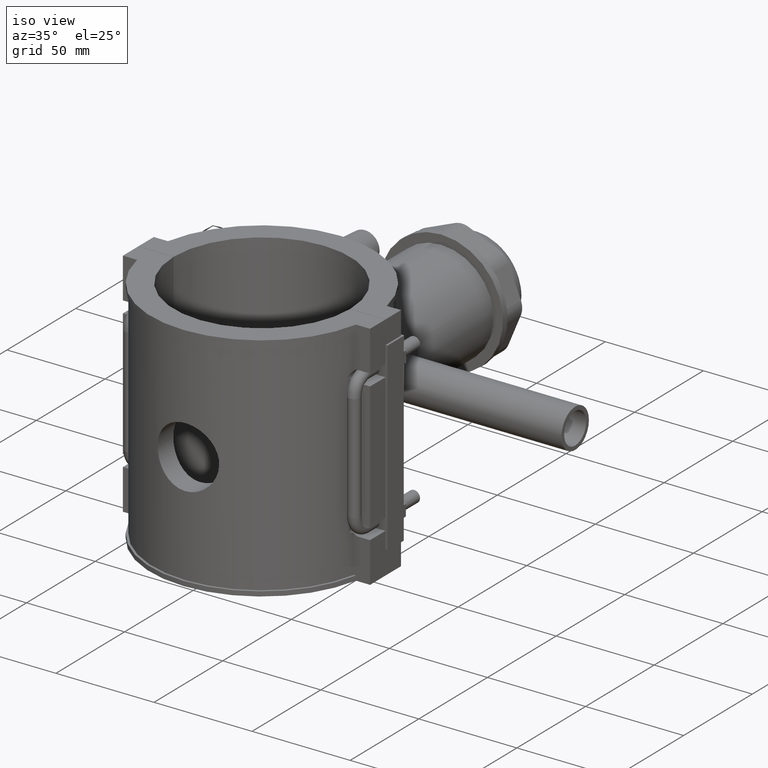
[diagram: clean part render]
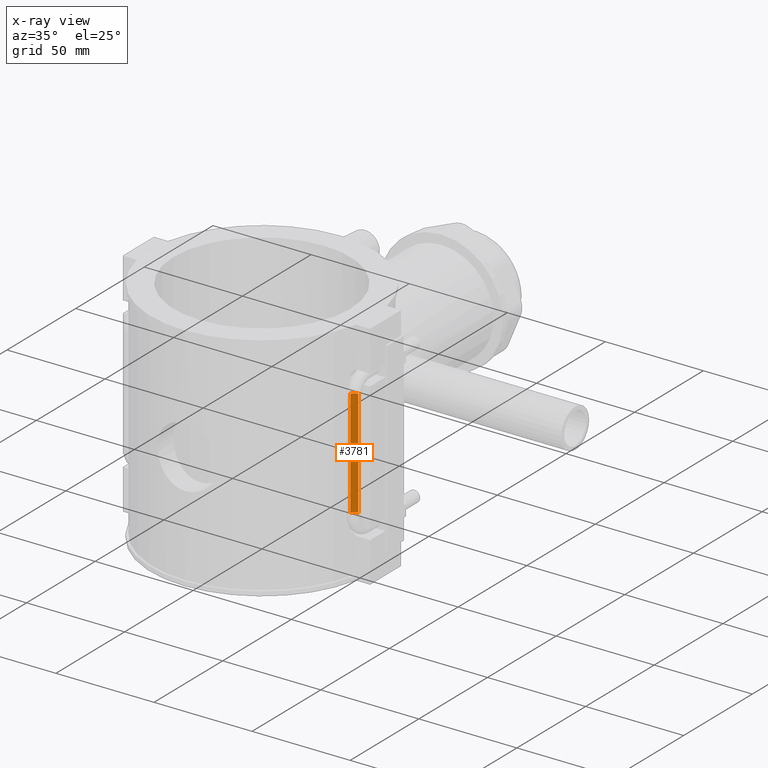
[diagram: x-ray — body ghosted, one internal face saturated and labeled with its STEP entity id]
A machine part, iso view, then the same camera in x-ray: the body is ghosted and one INTERNAL B-rep face — a face not visible from any outside direction — is saturated and labeled: STEP entity #3781.
In plain terms, the highlighted cylindrical surface (edge-blend (fillet) strip) has radius 3 mm, axis along (0, 0, -1).
Its self-contained STEP definition (entity closure, byte-faithful):
#302=LINE('',#7910,#601);
#303=LINE('',#7913,#602);
#601=VECTOR('',#4961,54.7999999999999);
#602=VECTOR('',#4964,54.7999999999999);
#891=CIRCLE('',#4094,3.);
#892=CIRCLE('',#4097,3.);
#1149=FACE_OUTER_BOUND('',#1420,.T.);
#1420=EDGE_LOOP('',(#3344,#3345,#3346,#3347));
#1876=VERTEX_POINT('',#7762);
#1884=VERTEX_POINT('',#7828);
#1891=VERTEX_POINT('',#7893);
#1892=VERTEX_POINT('',#7912);
#2393=EDGE_CURVE('',#1891,#1884,#891,.T.);
#2394=EDGE_CURVE('',#1884,#1876,#302,.T.);
#2395=EDGE_CURVE('',#1891,#1892,#303,.T.);
#2396=EDGE_CURVE('',#1892,#1876,#892,.T.);
#3344=ORIENTED_EDGE('',*,*,#2395,.F.);
#3345=ORIENTED_EDGE('',*,*,#2393,.T.);
#3346=ORIENTED_EDGE('',*,*,#2394,.T.);
#3347=ORIENTED_EDGE('',*,*,#2396,.F.);
#3581=CYLINDRICAL_SURFACE('',#4096,3.);
#3781=ADVANCED_FACE('',(#1149),#3581,.T.);
#4094=AXIS2_PLACEMENT_3D('',#7908,#4957,#4958);
#4096=AXIS2_PLACEMENT_3D('',#7911,#4962,#4963);
#4097=AXIS2_PLACEMENT_3D('',#7914,#4965,#4966);
#4957=DIRECTION('center_axis',(0.,-6.12323399573677E-17,-1.));
#4958=DIRECTION('ref_axis',(-1.,0.,0.));
#4961=DIRECTION('',(0.,0.,-1.));
#4962=DIRECTION('center_axis',(0.,0.,-1.));
#4963=DIRECTION('ref_axis',(-1.,0.,0.));
#4964=DIRECTION('',(0.,0.,-1.));
#4965=DIRECTION('center_axis',(0.,-6.12323399573677E-17,-1.));
#4966=DIRECTION('ref_axis',(-1.,0.,0.));
#7762=CARTESIAN_POINT('',(57.,-11.25,-27.4));
#7828=CARTESIAN_POINT('',(57.,-11.25,27.3999999999999));
#7893=CARTESIAN_POINT('',(54.2550567814544,-13.0395097162878,27.3999999999999));
#7908=CARTESIAN_POINT('Origin',(57.,-14.2499999999994,27.3999999999999));
#7910=CARTESIAN_POINT('',(57.,-11.25,27.3999999999999));
#7911=CARTESIAN_POINT('Origin',(57.,-14.2499999999994,27.3999999999999));
#7912=CARTESIAN_POINT('',(54.2550567814544,-13.0395097162878,-27.4));
#7913=CARTESIAN_POINT('',(54.2550567814544,-13.0395097162878,27.3999999999999));
#7914=CARTESIAN_POINT('Origin',(57.,-14.2499999999994,-27.4));